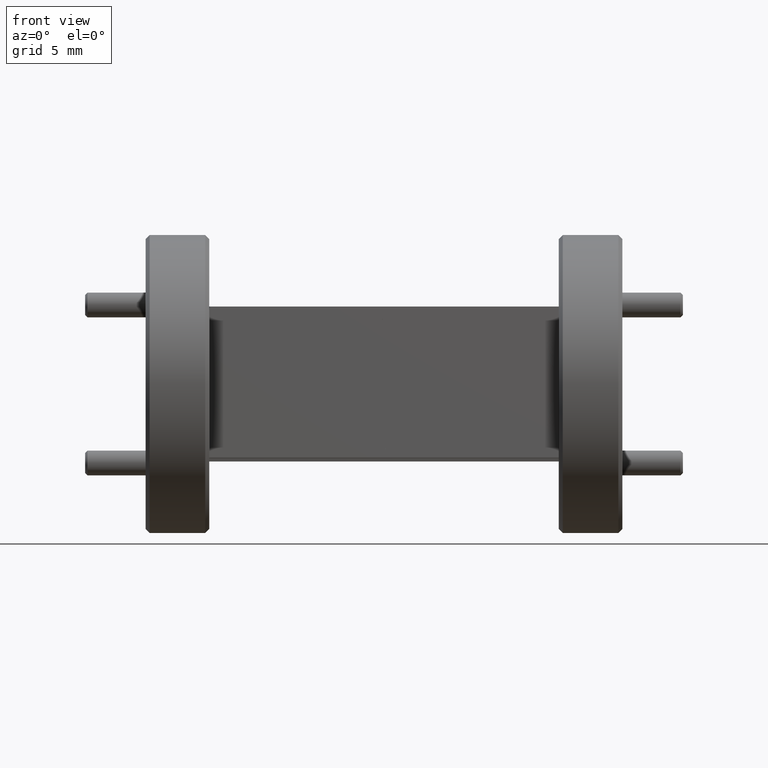
[diagram: clean part render]
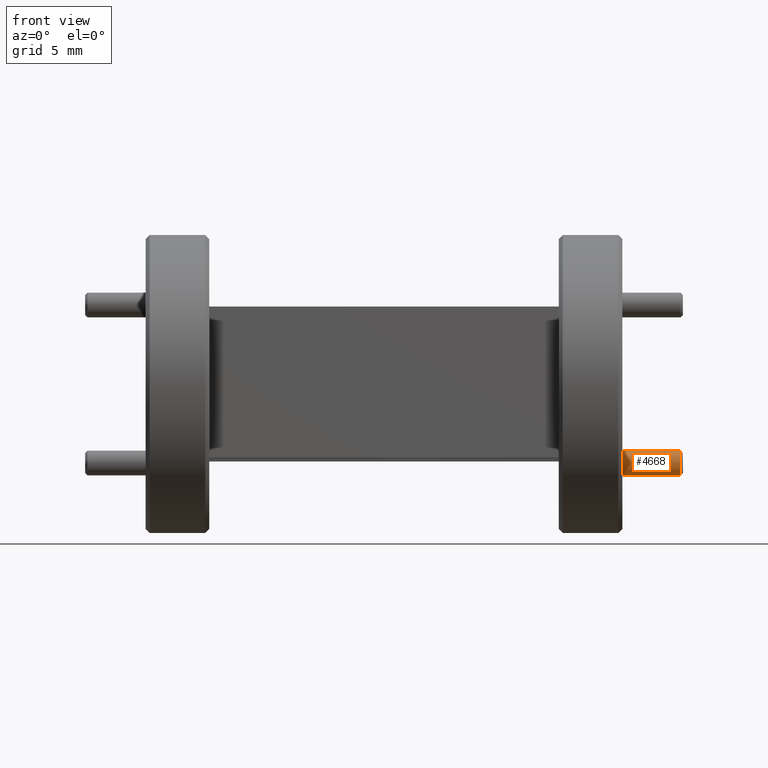
[diagram: same view with one face highlighted and labeled with its STEP entity id]
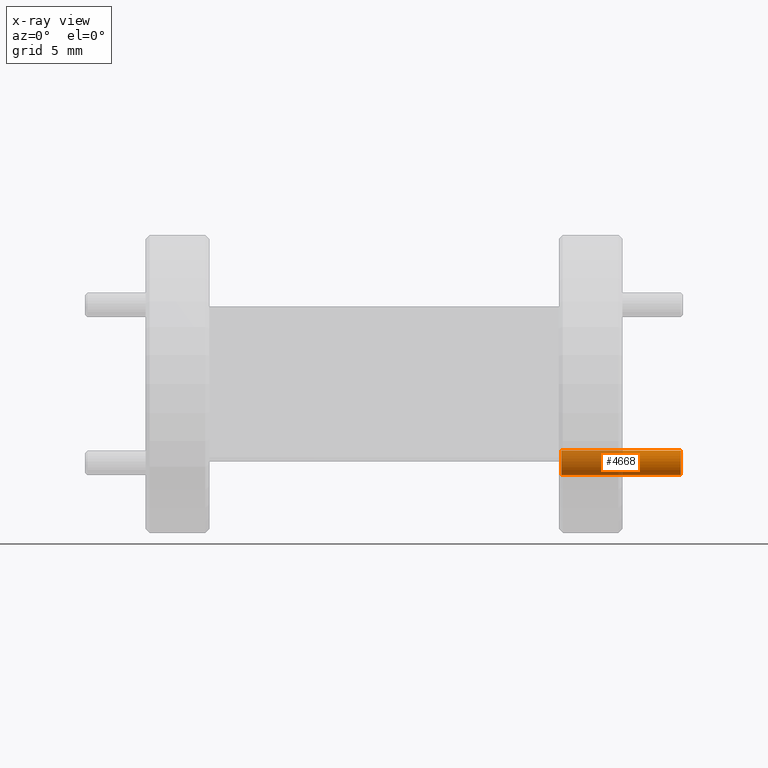
[diagram: x-ray of the same camera — body ghosted, the highlighted face saturated]
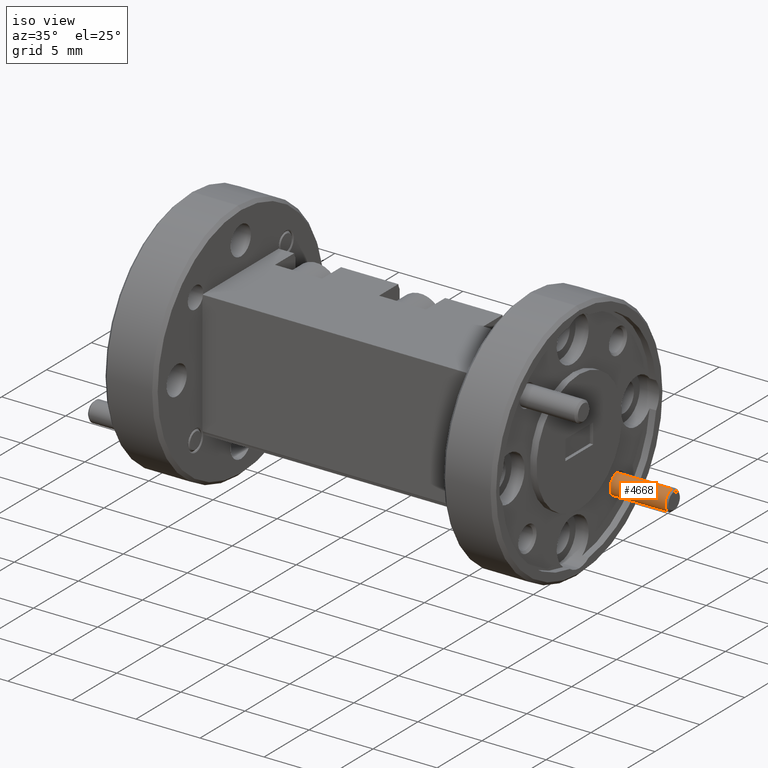
[diagram: same view with one face highlighted and labeled with its STEP entity id]
A machine part, front view. The second image highlights one B-rep face of the part: STEP entity #4668.
The next image is the same camera in x-ray: the body ghosted, the highlighted face saturated — about 51% of this face is hidden behind the body in this view.
A second angle (iso view) of the same face is appended — the face is thin or edge-on in the first view.
In plain terms, the highlighted cylindrical surface (edge-blend (fillet) strip) has radius 0.7937 mm, axis along (-1, 0, -0).
Its self-contained STEP definition (entity closure, byte-faithful):
#342 = CYLINDRICAL_SURFACE ( 'NONE', #715, 0.03124999999999997571 ) ;
#388 = ORIENTED_EDGE ( 'NONE', *, *, #9880, .T. ) ;
#715 = AXIS2_PLACEMENT_3D ( 'NONE', #11742, #7980, #9942 ) ;
#762 = CARTESIAN_POINT ( 'NONE',  ( 1.198701282502861787, 0.8939295843151955356, 0.6418297324732926690 ) ) ;
#874 = DIRECTION ( 'NONE',  ( -1.000000000000000000, 0.000000000000000000, -6.982962677686265922E-15 ) ) ;
#1598 = EDGE_LOOP ( 'NONE', ( #1843, #5528, #388, #1811 ) ) ;
#1636 = VERTEX_POINT ( 'NONE', #7998 ) ;
#1811 = ORIENTED_EDGE ( 'NONE', *, *, #9420, .T. ) ;
#1843 = ORIENTED_EDGE ( 'NONE', *, *, #7455, .F. ) ;
#2291 = DIRECTION ( 'NONE',  ( 1.000000000000000000, -0.000000000000000000, 6.982962677686266711E-15 ) ) ;
#2680 = CARTESIAN_POINT ( 'NONE',  ( 1.204951282502860987, 0.8939295843151955356, 0.7043297324732925579 ) ) ;
#3400 = DIRECTION ( 'NONE',  ( -1.000000000000000000, 0.000000000000000000, -6.982962677686265922E-15 ) ) ;
#3817 = DIRECTION ( 'NONE',  ( -8.741913579725648610E-15, 0.000000000000000000, 1.000000000000000000 ) ) ;
#3890 = DIRECTION ( 'NONE',  ( -1.000000000000000000, 0.000000000000000000, -6.982962677686266711E-15 ) ) ;
#4067 = CARTESIAN_POINT ( 'NONE',  ( 1.198701282502861343, 0.8939295843151955356, 0.6730797324732925579 ) ) ;
#4334 = LINE ( 'NONE', #8117, #5253 ) ;
#4668 = ADVANCED_FACE ( 'NONE', ( #8849 ), #342, .T. ) ;
#5049 = CIRCLE ( 'NONE', #10168, 0.03124999999999997571 ) ;
#5253 = VECTOR ( 'NONE', #3400, 39.37007874015748143 ) ;
#5449 = VECTOR ( 'NONE', #874, 39.37007874015748143 ) ;
#5528 = ORIENTED_EDGE ( 'NONE', *, *, #9637, .T. ) ;
#6087 = DIRECTION ( 'NONE',  ( -8.741913579725648610E-15, 0.000000000000000000, 1.000000000000000000 ) ) ;
#6578 = VERTEX_POINT ( 'NONE', #762 ) ;
#7154 = VERTEX_POINT ( 'NONE', #9721 ) ;
#7226 = VERTEX_POINT ( 'NONE', #8744 ) ;
#7455 = EDGE_CURVE ( 'NONE', #6578, #7154, #4334, .T. ) ;
#7980 = DIRECTION ( 'NONE',  ( -1.000000000000000000, 0.000000000000000000, -6.982962677686266711E-15 ) ) ;
#7998 = CARTESIAN_POINT ( 'NONE',  ( 0.8987012825028610763, 0.8939295843151955356, 0.7043297324732903375 ) ) ;
#8117 = CARTESIAN_POINT ( 'NONE',  ( 1.204951282502861654, 0.8939295843151955356, 0.6418297324732926690 ) ) ;
#8186 = LINE ( 'NONE', #2680, #5449 ) ;
#8744 = CARTESIAN_POINT ( 'NONE',  ( 1.198701282502861121, 0.8939295843151955356, 0.7043297324732925579 ) ) ;
#8849 = FACE_OUTER_BOUND ( 'NONE', #1598, .T. ) ;
#9420 = EDGE_CURVE ( 'NONE', #1636, #7154, #5049, .T. ) ;
#9637 = EDGE_CURVE ( 'NONE', #6578, #7226, #10586, .T. ) ;
#9721 = CARTESIAN_POINT ( 'NONE',  ( 0.8987012825028616314, 0.8939295843151955356, 0.6418297324732904485 ) ) ;
#9880 = EDGE_CURVE ( 'NONE', #7226, #1636, #8186, .T. ) ;
#9942 = DIRECTION ( 'NONE',  ( -8.741913579725648610E-15, 0.000000000000000000, 1.000000000000000000 ) ) ;
#10168 = AXIS2_PLACEMENT_3D ( 'NONE', #10752, #2291, #6087 ) ;
#10586 = CIRCLE ( 'NONE', #11373, 0.03124999999999997571 ) ;
#10752 = CARTESIAN_POINT ( 'NONE',  ( 0.8987012825028612983, 0.8939295843151955356, 0.6730797324732904485 ) ) ;
#11373 = AXIS2_PLACEMENT_3D ( 'NONE', #4067, #3890, #3817 ) ;
#11742 = CARTESIAN_POINT ( 'NONE',  ( 1.204951282502861432, 0.8939295843151955356, 0.6730797324732925579 ) ) ;